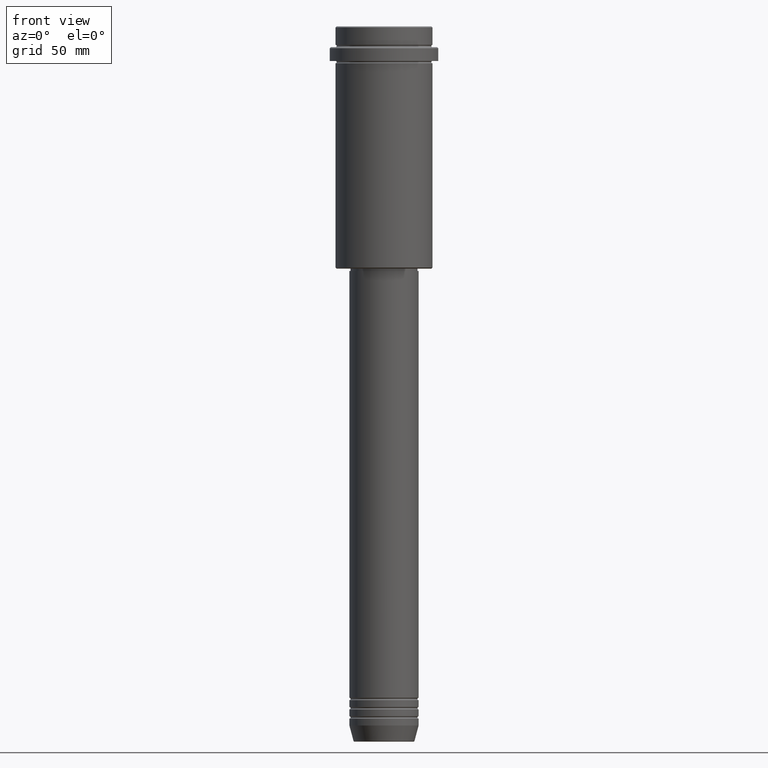
[diagram: clean part render]
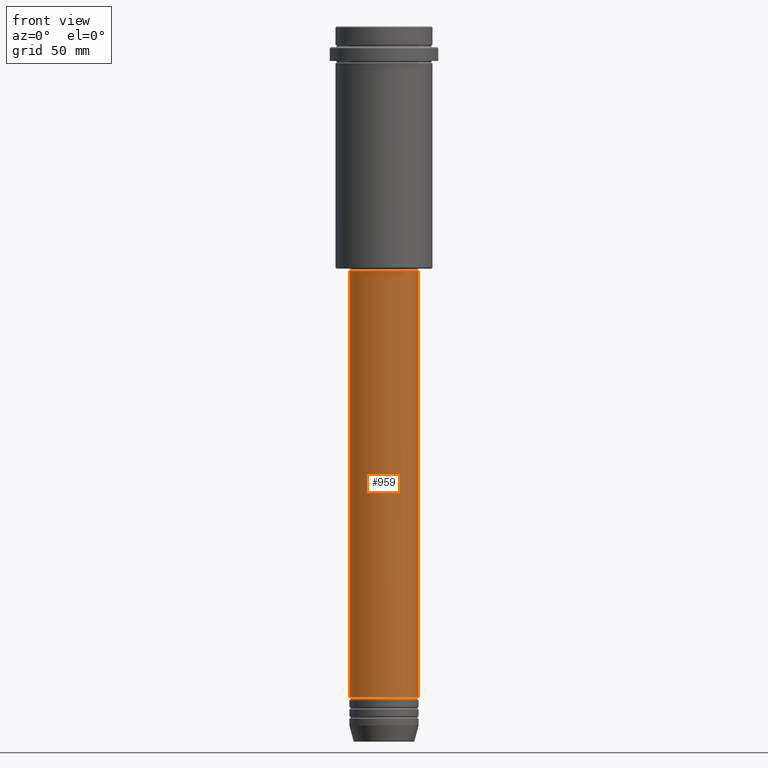
[diagram: same view with one face highlighted and labeled with its STEP entity id]
A machine part, front view. The second image highlights one B-rep face of the part: STEP entity #959.
In plain terms, the highlighted cylindrical surface (edge-blend (fillet) strip) has radius 15 mm, axis along (-0, -0, 1).
Its self-contained STEP definition (entity closure, byte-faithful):
#28 = EDGE_CURVE ( 'NONE', #58, #504, #1084, .T. ) ;
#58 = VERTEX_POINT ( 'NONE', #217 ) ;
#99 = CARTESIAN_POINT ( 'NONE',  ( 0.000000000000000000, 0.000000000000000000, 0.000000000000000000 ) ) ;
#114 = CYLINDRICAL_SURFACE ( 'NONE', #229, 15.00000000000000000 ) ;
#117 = CARTESIAN_POINT ( 'NONE',  ( -15.00000000000000000, 1.836970198721029589E-15, -105.9999999999999289 ) ) ;
#163 = ORIENTED_EDGE ( 'NONE', *, *, #926, .T. ) ;
#217 = CARTESIAN_POINT ( 'NONE',  ( -15.00000000000000000, 1.836970198721029589E-15, -290.9999999999998863 ) ) ;
#229 = AXIS2_PLACEMENT_3D ( 'NONE', #99, #657, #433 ) ;
#255 = ORIENTED_EDGE ( 'NONE', *, *, #28, .F. ) ;
#303 = CARTESIAN_POINT ( 'NONE',  ( 0.000000000000000000, 0.000000000000000000, -105.9999999999999289 ) ) ;
#332 = EDGE_CURVE ( 'NONE', #58, #360, #1360, .T. ) ;
#360 = VERTEX_POINT ( 'NONE', #395 ) ;
#395 = CARTESIAN_POINT ( 'NONE',  ( 15.00000000000000000, 0.000000000000000000, -290.9999999999998863 ) ) ;
#413 = VECTOR ( 'NONE', #1410, 1000.000000000000000 ) ;
#426 = ORIENTED_EDGE ( 'NONE', *, *, #332, .T. ) ;
#428 = DIRECTION ( 'NONE',  ( -0.000000000000000000, -0.000000000000000000, 1.000000000000000000 ) ) ;
#433 = DIRECTION ( 'NONE',  ( 1.000000000000000000, 0.000000000000000000, 0.000000000000000000 ) ) ;
#504 = VERTEX_POINT ( 'NONE', #117 ) ;
#505 = DIRECTION ( 'NONE',  ( 1.000000000000000000, 0.000000000000000000, 0.000000000000000000 ) ) ;
#654 = CARTESIAN_POINT ( 'NONE',  ( 15.00000000000000000, 0.000000000000000000, -105.9999999999999289 ) ) ;
#657 = DIRECTION ( 'NONE',  ( -0.000000000000000000, -0.000000000000000000, 1.000000000000000000 ) ) ;
#707 = DIRECTION ( 'NONE',  ( -0.000000000000000000, -0.000000000000000000, 1.000000000000000000 ) ) ;
#711 = AXIS2_PLACEMENT_3D ( 'NONE', #303, #428, #505 ) ;
#724 = EDGE_CURVE ( 'NONE', #504, #1220, #1095, .T. ) ;
#766 = LINE ( 'NONE', #1406, #782 ) ;
#782 = VECTOR ( 'NONE', #1313, 1000.000000000000000 ) ;
#877 = EDGE_LOOP ( 'NONE', ( #255, #426, #163, #896 ) ) ;
#896 = ORIENTED_EDGE ( 'NONE', *, *, #724, .F. ) ;
#913 = AXIS2_PLACEMENT_3D ( 'NONE', #1136, #707, #1271 ) ;
#926 = EDGE_CURVE ( 'NONE', #360, #1220, #766, .T. ) ;
#959 = ADVANCED_FACE ( 'NONE', ( #1191 ), #114, .T. ) ;
#973 = CARTESIAN_POINT ( 'NONE',  ( -15.00000000000000000, 1.836970198721029589E-15, 0.000000000000000000 ) ) ;
#1084 = LINE ( 'NONE', #973, #413 ) ;
#1095 = CIRCLE ( 'NONE', #711, 15.00000000000000000 ) ;
#1136 = CARTESIAN_POINT ( 'NONE',  ( 0.000000000000000000, 0.000000000000000000, -290.9999999999998863 ) ) ;
#1191 = FACE_OUTER_BOUND ( 'NONE', #877, .T. ) ;
#1220 = VERTEX_POINT ( 'NONE', #654 ) ;
#1271 = DIRECTION ( 'NONE',  ( 1.000000000000000000, 0.000000000000000000, 0.000000000000000000 ) ) ;
#1313 = DIRECTION ( 'NONE',  ( -0.000000000000000000, -0.000000000000000000, 1.000000000000000000 ) ) ;
#1360 = CIRCLE ( 'NONE', #913, 15.00000000000000000 ) ;
#1406 = CARTESIAN_POINT ( 'NONE',  ( 15.00000000000000000, 0.000000000000000000, 0.000000000000000000 ) ) ;
#1410 = DIRECTION ( 'NONE',  ( -0.000000000000000000, -0.000000000000000000, 1.000000000000000000 ) ) ;